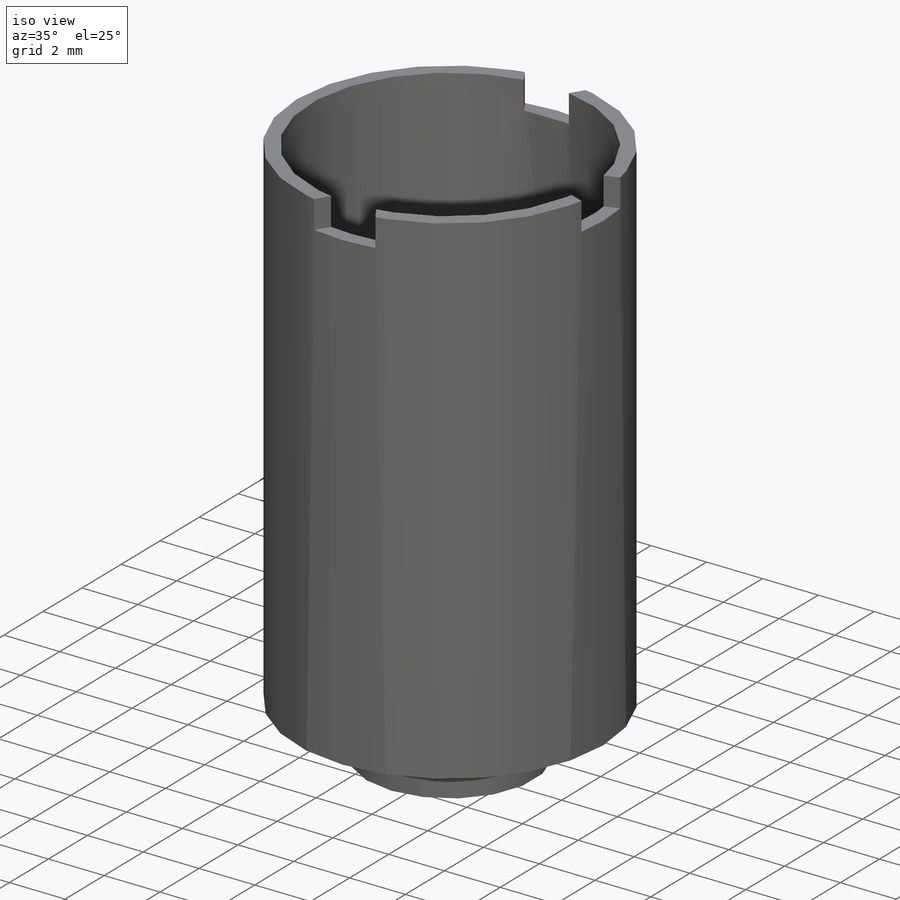
[diagram: iso view]
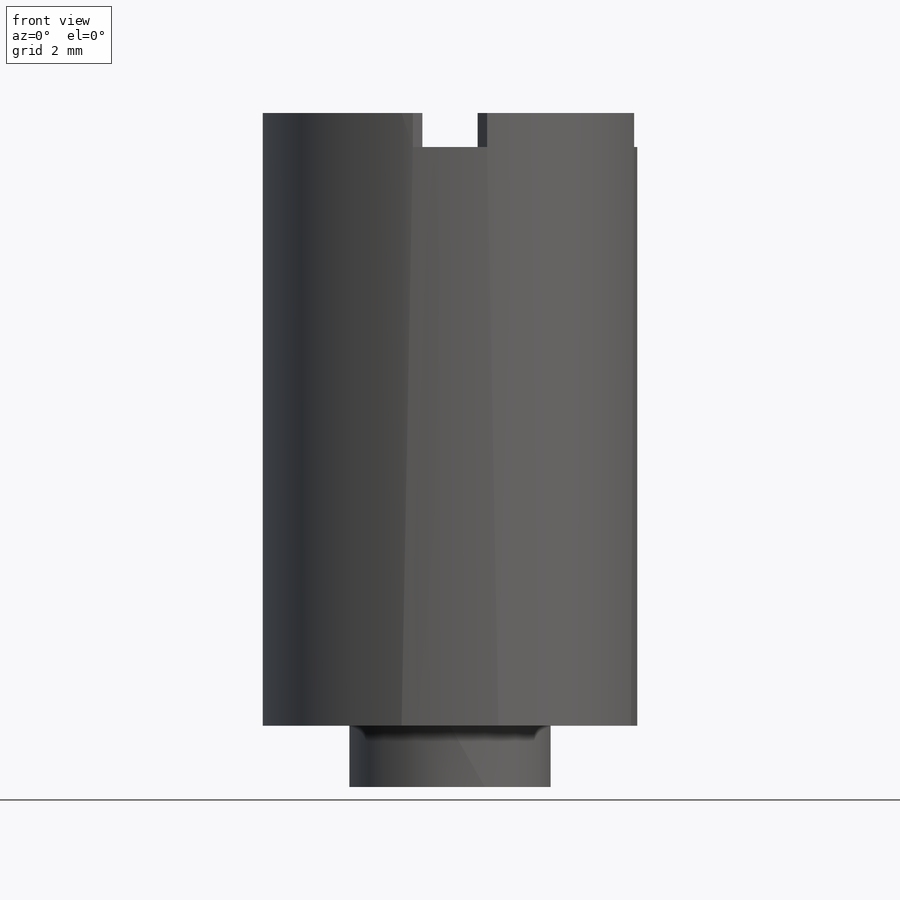
[diagram: front view]
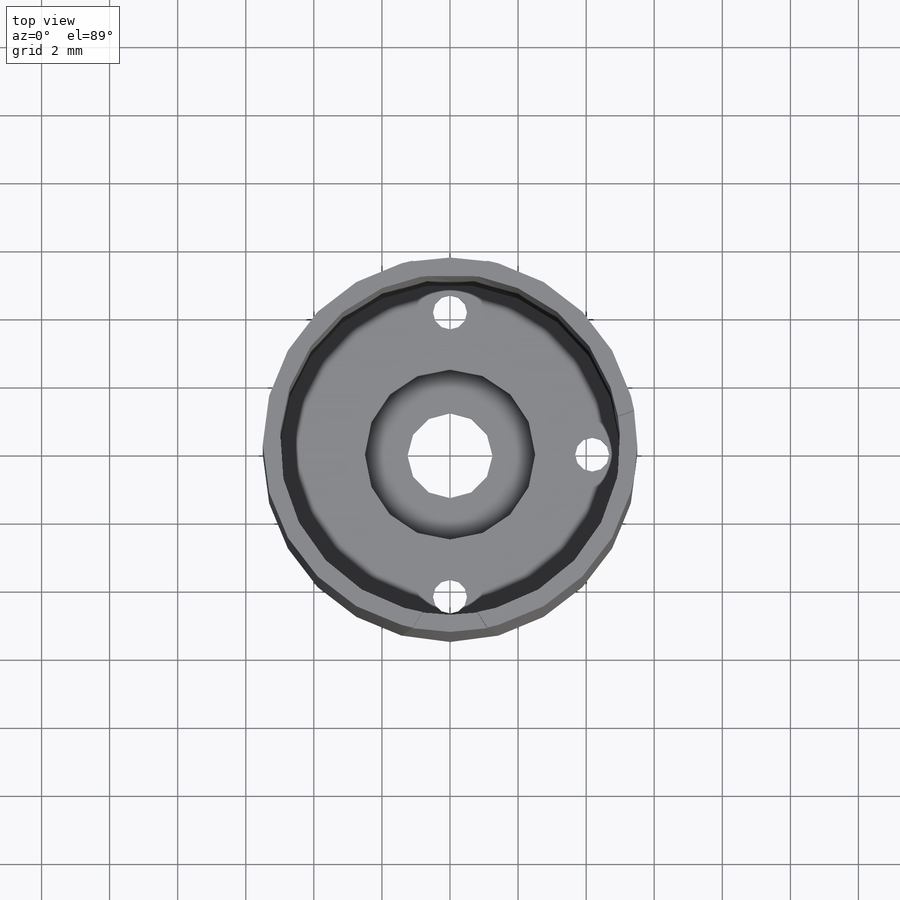
[diagram: top view]
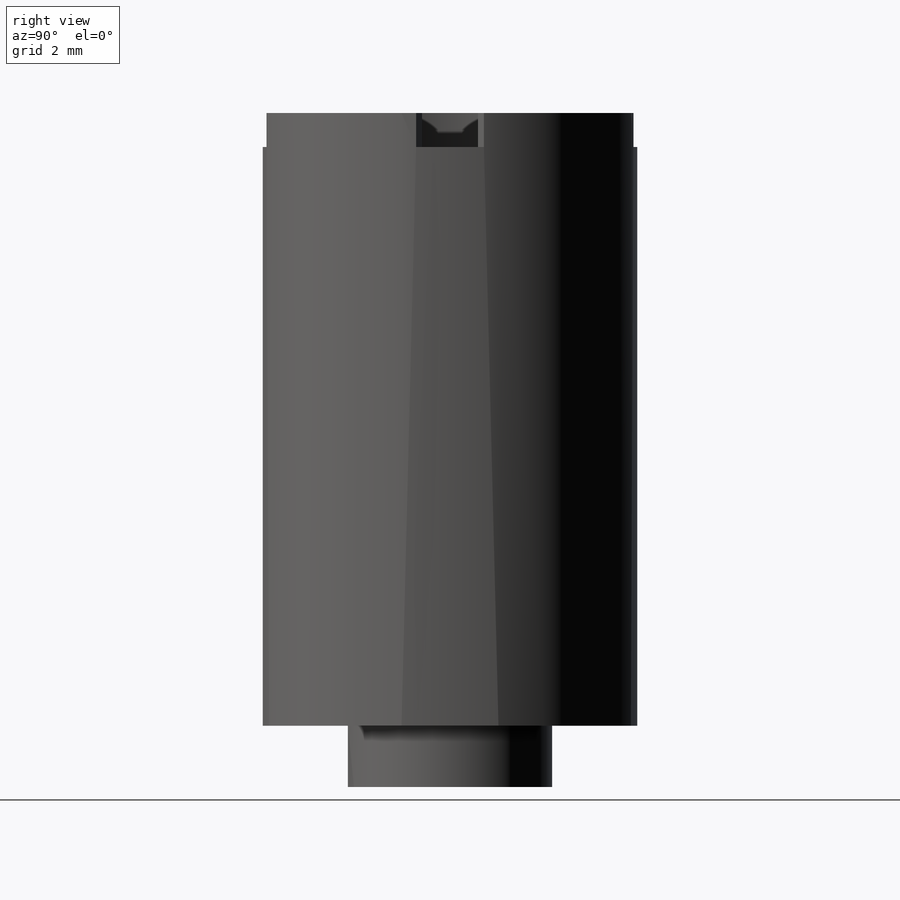
[diagram: right view]
SOLIDWORKS PART (.sldprt)
format: sldprt  version: not decoded by parser v0  size: 174,080 bytes
history: native  units: mm
features: sketch x5, plane x4, cut_extrude x3, extrude x2, material x1, shell x1, pattern_circular x1 + 1 further entry (+10 scaffold rows collapsed)
feature tree (28):
  scaffold x10  (default folders/planes/origin — collapsed)
  material  "Matériau <non spécifié>"
  "Corps de surface"
  plane  "Face"
  plane  "Dessus"
  plane  "Droite"
  sketch  "Esquisse1"  dims[c1.D1=12.0mm c1.D3=11.0mm c2.D1=12.06mm c2.D2=18.3mm c3.D1=~15.712555mm]
  extrude  "Base-Extrusion"  Depth=18mm
  sketch  "Esquisse2"  dims[D1=6.0mm]
  extrude  "Boss.-Extru.1"  Depth=1.8mm
  shell  "Coque1"  Thickness=0.5mm
  sketch  "Esquisse3"  dims[D1=2.5mm]
  cut_extrude  "Enlèv. mat.-Extru.1"  [1 undecoded]
  sketch  "Esquisse4"  dims[c1.D1=2.0mm c1.D2=2.3mm c1.D3=2.0mm c1.D4=2.0mm c2.D1=11.5mm c2.D4=5.5mm]
  cut_extrude  "Enlèv. mat.-Extru.2"  Depth=1mm
  plane  "Plan2"  Offset=13.45mm
  sketch  "Esquisse5"  dims[D1=1.0mm]
  cut_extrude  "Enlèv. mat.-Extru.3"  [1 undecoded]
  pattern_circular  "Répétition circulaire1"  Count=3 Angle=180deg
decode coverage: 10 of 12 modeling features carry decoded parameters; 1 rows unclassified (native names shown)
note: ~ marks probable driven/reference dimensions
note: 2 parameter values undecoded
note: suppression state not decoded; provenance and decode notes live in map.json
